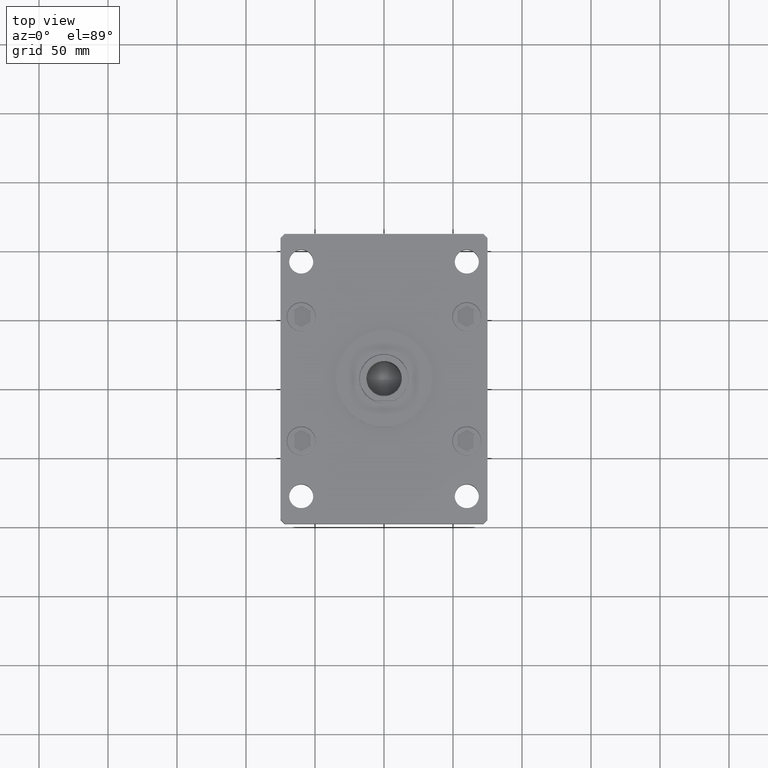
[diagram: clean part render]
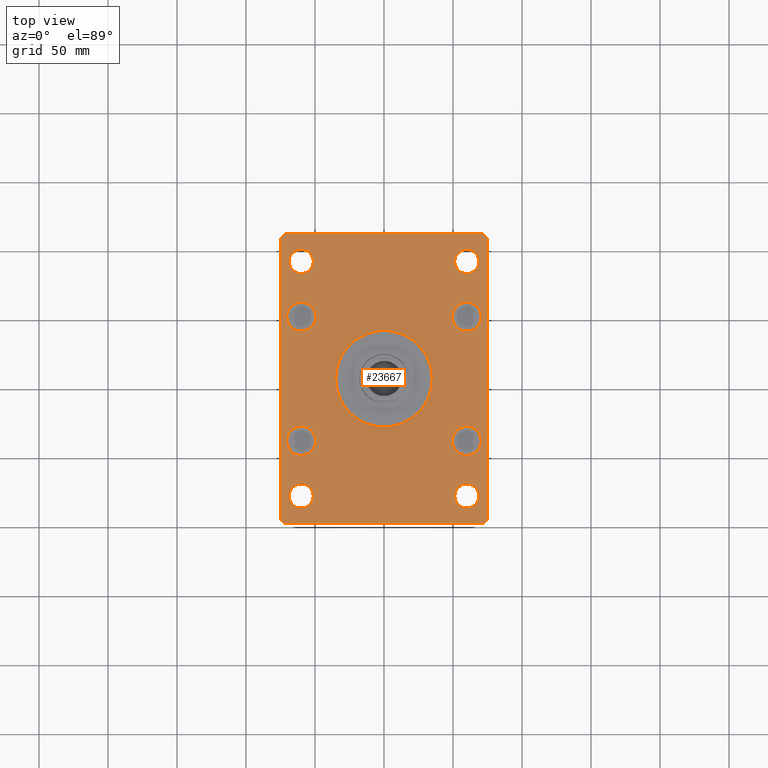
[diagram: same view with one face highlighted and labeled with its STEP entity id]
A machine part, top view. The second image highlights one B-rep face of the part: STEP entity #23667.
In plain terms, the highlighted planar face has unit normal (0, 0, 1).
Its self-contained STEP definition (entity closure, byte-faithful):
#260 = CARTESIAN_POINT ( 'NONE',  ( 75.00000000000001421, 102.0000000000000142, 27.00000000000000000 ) ) ;
#352 = ORIENTED_EDGE ( 'NONE', *, *, #47602, .F. ) ;
#439 = DIRECTION ( 'NONE',  ( 1.000000000000000000, 0.000000000000000000, 0.000000000000000000 ) ) ;
#751 = EDGE_CURVE ( 'NONE', #18945, #15163, #23187, .T. ) ;
#865 = DIRECTION ( 'NONE',  ( 1.000000000000000000, 0.000000000000000000, 0.000000000000000000 ) ) ;
#1011 = EDGE_CURVE ( 'NONE', #15163, #18945, #10245, .T. ) ;
#1012 = AXIS2_PLACEMENT_3D ( 'NONE', #3447, #19679, #14848 ) ;
#1070 = CIRCLE ( 'NONE', #48639, 10.50000000000000178 ) ;
#1314 = ORIENTED_EDGE ( 'NONE', *, *, #5724, .F. ) ;
#1429 = ORIENTED_EDGE ( 'NONE', *, *, #23904, .T. ) ;
#1515 = ORIENTED_EDGE ( 'NONE', *, *, #31446, .T. ) ;
#1531 = VERTEX_POINT ( 'NONE', #48296 ) ;
#2531 = DIRECTION ( 'NONE',  ( 0.000000000000000000, 0.000000000000000000, 1.000000000000000000 ) ) ;
#2704 = EDGE_CURVE ( 'NONE', #6020, #50595, #3052, .T. ) ;
#2845 = EDGE_LOOP ( 'NONE', ( #38983, #1314 ) ) ;
#2946 = DIRECTION ( 'NONE',  ( 1.000000000000000000, 0.000000000000000000, -0.000000000000000000 ) ) ;
#3052 = LINE ( 'NONE', #28751, #29283 ) ;
#3064 = EDGE_CURVE ( 'NONE', #10298, #18015, #10282, .T. ) ;
#3068 = ORIENTED_EDGE ( 'NONE', *, *, #18777, .T. ) ;
#3306 = DIRECTION ( 'NONE',  ( 0.000000000000000000, 0.000000000000000000, 1.000000000000000000 ) ) ;
#3447 = CARTESIAN_POINT ( 'NONE',  ( -60.00000000000000711, 84.99999999999997158, 27.00000000000000000 ) ) ;
#3692 = EDGE_LOOP ( 'NONE', ( #352, #37514 ) ) ;
#3762 = ORIENTED_EDGE ( 'NONE', *, *, #13640, .F. ) ;
#3950 = CARTESIAN_POINT ( 'NONE',  ( 51.24999999999995737, -85.00000000000001421, 27.00000000000000000 ) ) ;
#4043 = CIRCLE ( 'NONE', #28255, 35.00000000000000711 ) ;
#4055 = LINE ( 'NONE', #37066, #5712 ) ;
#4129 = CARTESIAN_POINT ( 'NONE',  ( -49.49999999999999289, 45.00000000000001421, 27.00000000000000000 ) ) ;
#4199 = DIRECTION ( 'NONE',  ( 0.7071067811865474617, -0.7071067811865474617, 0.000000000000000000 ) ) ;
#4204 = CARTESIAN_POINT ( 'NONE',  ( 60.00000000000000000, 45.00000000000000711, 27.00000000000000000 ) ) ;
#4260 = CARTESIAN_POINT ( 'NONE',  ( 59.99999999999997158, -85.00000000000001421, 27.00000000000000000 ) ) ;
#4379 = CARTESIAN_POINT ( 'NONE',  ( -60.00000000000000000, -45.00000000000000000, 27.00000000000000000 ) ) ;
#5245 = CARTESIAN_POINT ( 'NONE',  ( -71.99999999999998579, -105.0000000000000142, 27.00000000000000000 ) ) ;
#5476 = CARTESIAN_POINT ( 'NONE',  ( -59.99999999999997158, -85.00000000000001421, 27.00000000000000000 ) ) ;
#5642 = EDGE_CURVE ( 'NONE', #16416, #21475, #31824, .T. ) ;
#5712 = VECTOR ( 'NONE', #29505, 1000.000000000000114 ) ;
#5724 = EDGE_CURVE ( 'NONE', #18015, #10298, #8487, .T. ) ;
#5817 = ORIENTED_EDGE ( 'NONE', *, *, #33747, .F. ) ;
#5964 = DIRECTION ( 'NONE',  ( 1.000000000000000000, 0.000000000000000000, 0.000000000000000000 ) ) ;
#6020 = VERTEX_POINT ( 'NONE', #260 ) ;
#6182 = VECTOR ( 'NONE', #53256, 1000.000000000000000 ) ;
#6825 = CARTESIAN_POINT ( 'NONE',  ( -72.00000000000002842, 105.0000000000000000, 27.00000000000000000 ) ) ;
#6908 = LINE ( 'NONE', #27480, #27236 ) ;
#7007 = FACE_BOUND ( 'NONE', #19407, .T. ) ;
#7162 = CIRCLE ( 'NONE', #46958, 8.750000000000007105 ) ;
#8024 = EDGE_CURVE ( 'NONE', #32370, #20910, #26948, .T. ) ;
#8384 = CARTESIAN_POINT ( 'NONE',  ( 60.00000000000000000, 84.99999999999998579, 27.00000000000000000 ) ) ;
#8487 = CIRCLE ( 'NONE', #12831, 10.50000000000000178 ) ;
#8606 = CARTESIAN_POINT ( 'NONE',  ( 59.99999999999997158, -85.00000000000001421, 27.00000000000000000 ) ) ;
#8777 = CIRCLE ( 'NONE', #1012, 8.750000000000007105 ) ;
#8974 = ORIENTED_EDGE ( 'NONE', *, *, #18209, .F. ) ;
#9233 = DIRECTION ( 'NONE',  ( 0.000000000000000000, 0.000000000000000000, 1.000000000000000000 ) ) ;
#9311 = LINE ( 'NONE', #5245, #48467 ) ;
#9829 = ORIENTED_EDGE ( 'NONE', *, *, #49407, .T. ) ;
#10063 = DIRECTION ( 'NONE',  ( 1.000000000000000000, 0.000000000000000000, 0.000000000000000000 ) ) ;
#10145 = CARTESIAN_POINT ( 'NONE',  ( -71.99999999999998579, -105.0000000000000142, 27.00000000000000000 ) ) ;
#10218 = EDGE_LOOP ( 'NONE', ( #45666, #26671 ) ) ;
#10245 = CIRCLE ( 'NONE', #43099, 8.750000000000007105 ) ;
#10282 = CIRCLE ( 'NONE', #40523, 10.50000000000000178 ) ;
#10298 = VERTEX_POINT ( 'NONE', #37682 ) ;
#10814 = DIRECTION ( 'NONE',  ( 0.000000000000000000, 0.000000000000000000, 1.000000000000000000 ) ) ;
#11794 = VECTOR ( 'NONE', #4199, 1000.000000000000114 ) ;
#12492 = VERTEX_POINT ( 'NONE', #20042 ) ;
#12511 = EDGE_LOOP ( 'NONE', ( #50767, #14949 ) ) ;
#12653 = LINE ( 'NONE', #16159, #6182 ) ;
#12819 = VERTEX_POINT ( 'NONE', #3950 ) ;
#12831 = AXIS2_PLACEMENT_3D ( 'NONE', #52275, #40082, #10063 ) ;
#12894 = CARTESIAN_POINT ( 'NONE',  ( -75.00000000000001421, 102.0000000000000000, 27.00000000000000000 ) ) ;
#13073 = DIRECTION ( 'NONE',  ( 1.000000000000000000, 0.000000000000000000, 0.000000000000000000 ) ) ;
#13268 = CIRCLE ( 'NONE', #42681, 10.50000000000000178 ) ;
#13640 = EDGE_CURVE ( 'NONE', #52314, #19594, #20842, .T. ) ;
#14848 = DIRECTION ( 'NONE',  ( 1.000000000000000000, 0.000000000000000000, 0.000000000000000000 ) ) ;
#14878 = FACE_BOUND ( 'NONE', #10218, .T. ) ;
#14949 = ORIENTED_EDGE ( 'NONE', *, *, #35287, .F. ) ;
#14961 = AXIS2_PLACEMENT_3D ( 'NONE', #35634, #22924, #39440 ) ;
#15036 = DIRECTION ( 'NONE',  ( 1.360567432138672081E-16, -1.000000000000000000, 0.000000000000000000 ) ) ;
#15047 = VERTEX_POINT ( 'NONE', #32380 ) ;
#15163 = VERTEX_POINT ( 'NONE', #45670 ) ;
#15966 = CARTESIAN_POINT ( 'NONE',  ( 70.50000000000000000, -45.00000000000000711, 27.00000000000000000 ) ) ;
#16159 = CARTESIAN_POINT ( 'NONE',  ( 72.00000000000004263, 105.0000000000000284, 27.00000000000000000 ) ) ;
#16416 = VERTEX_POINT ( 'NONE', #31868 ) ;
#16467 = AXIS2_PLACEMENT_3D ( 'NONE', #47915, #10814, #2946 ) ;
#17209 = EDGE_CURVE ( 'NONE', #36291, #1531, #34810, .T. ) ;
#18015 = VERTEX_POINT ( 'NONE', #4129 ) ;
#18125 = ORIENTED_EDGE ( 'NONE', *, *, #8024, .T. ) ;
#18209 = EDGE_CURVE ( 'NONE', #21475, #16416, #7162, .T. ) ;
#18777 = EDGE_CURVE ( 'NONE', #36640, #32370, #52320, .T. ) ;
#18922 = FACE_OUTER_BOUND ( 'NONE', #36767, .T. ) ;
#18945 = VERTEX_POINT ( 'NONE', #36174 ) ;
#19262 = DIRECTION ( 'NONE',  ( 1.000000000000000000, 0.000000000000000000, 0.000000000000000000 ) ) ;
#19342 = CARTESIAN_POINT ( 'NONE',  ( 75.00000000000000000, -101.9999999999999005, 27.00000000000000000 ) ) ;
#19407 = EDGE_LOOP ( 'NONE', ( #40715, #36647 ) ) ;
#19594 = VERTEX_POINT ( 'NONE', #26740 ) ;
#19679 = DIRECTION ( 'NONE',  ( 0.000000000000000000, 0.000000000000000000, 1.000000000000000000 ) ) ;
#19966 = CARTESIAN_POINT ( 'NONE',  ( 70.50000000000000000, 45.00000000000000711, 27.00000000000000000 ) ) ;
#20042 = CARTESIAN_POINT ( 'NONE',  ( -51.25000000000000000, 84.99999999999997158, 27.00000000000000000 ) ) ;
#20131 = VERTEX_POINT ( 'NONE', #19342 ) ;
#20257 = CARTESIAN_POINT ( 'NONE',  ( 35.00000000000000711, 4.286263797015737285E-15, 27.00000000000000000 ) ) ;
#20485 = EDGE_CURVE ( 'NONE', #15047, #26209, #1070, .T. ) ;
#20842 = CIRCLE ( 'NONE', #33842, 10.49999999999999467 ) ;
#20910 = VERTEX_POINT ( 'NONE', #39938 ) ;
#21318 = DIRECTION ( 'NONE',  ( 1.000000000000000000, 0.000000000000000000, 0.000000000000000000 ) ) ;
#21475 = VERTEX_POINT ( 'NONE', #50677 ) ;
#21632 = CARTESIAN_POINT ( 'NONE',  ( 0.000000000000000000, 0.000000000000000000, 27.00000000000000000 ) ) ;
#22370 = CARTESIAN_POINT ( 'NONE',  ( -60.00000000000000000, 45.00000000000001421, 27.00000000000000000 ) ) ;
#22924 = DIRECTION ( 'NONE',  ( 0.000000000000000000, 0.000000000000000000, 1.000000000000000000 ) ) ;
#23013 = ORIENTED_EDGE ( 'NONE', *, *, #17209, .F. ) ;
#23187 = CIRCLE ( 'NONE', #45689, 8.750000000000007105 ) ;
#23197 = EDGE_CURVE ( 'NONE', #52649, #12819, #26820, .T. ) ;
#23425 = DIRECTION ( 'NONE',  ( 6.802837160693364103E-17, 1.000000000000000000, 0.000000000000000000 ) ) ;
#23588 = ORIENTED_EDGE ( 'NONE', *, *, #37805, .F. ) ;
#23667 = ADVANCED_FACE ( 'NONE', ( #26781, #47650, #35966, #31113, #39511, #18922, #14878, #7007, #35441, #51975 ), #31383, .T. ) ;
#23904 = EDGE_CURVE ( 'NONE', #37928, #53581, #9311, .T. ) ;
#24144 = DIRECTION ( 'NONE',  ( 1.000000000000000000, 0.000000000000000000, 0.000000000000000000 ) ) ;
#24563 = DIRECTION ( 'NONE',  ( 0.000000000000000000, 0.000000000000000000, 1.000000000000000000 ) ) ;
#24757 = EDGE_LOOP ( 'NONE', ( #23588, #36031 ) ) ;
#24766 = LINE ( 'NONE', #41287, #11794 ) ;
#25007 = DIRECTION ( 'NONE',  ( 0.000000000000000000, 0.000000000000000000, 1.000000000000000000 ) ) ;
#25350 = ORIENTED_EDGE ( 'NONE', *, *, #49991, .T. ) ;
#25402 = AXIS2_PLACEMENT_3D ( 'NONE', #4204, #33164, #53479 ) ;
#25824 = DIRECTION ( 'NONE',  ( 1.000000000000000000, 7.709882115452476194E-16, 0.000000000000000000 ) ) ;
#26209 = VERTEX_POINT ( 'NONE', #36998 ) ;
#26427 = AXIS2_PLACEMENT_3D ( 'NONE', #4260, #24563, #49206 ) ;
#26671 = ORIENTED_EDGE ( 'NONE', *, *, #751, .F. ) ;
#26740 = CARTESIAN_POINT ( 'NONE',  ( 49.50000000000000000, -45.00000000000000711, 27.00000000000000000 ) ) ;
#26781 = FACE_BOUND ( 'NONE', #45403, .T. ) ;
#26820 = CIRCLE ( 'NONE', #41558, 8.750000000000007105 ) ;
#26948 = LINE ( 'NONE', #43482, #38827 ) ;
#27236 = VECTOR ( 'NONE', #23425, 1000.000000000000000 ) ;
#27480 = CARTESIAN_POINT ( 'NONE',  ( 75.00000000000000000, -101.9999999999999005, 27.00000000000000000 ) ) ;
#27496 = AXIS2_PLACEMENT_3D ( 'NONE', #50685, #29837, #865 ) ;
#27918 = DIRECTION ( 'NONE',  ( 0.000000000000000000, 0.000000000000000000, 1.000000000000000000 ) ) ;
#28090 = CARTESIAN_POINT ( 'NONE',  ( 72.00000000000004263, 105.0000000000000284, 27.00000000000000000 ) ) ;
#28188 = DIRECTION ( 'NONE',  ( -0.7071067811865459074, -0.7071067811865491270, 0.000000000000000000 ) ) ;
#28210 = VERTEX_POINT ( 'NONE', #19966 ) ;
#28255 = AXIS2_PLACEMENT_3D ( 'NONE', #36857, #3306, #28740 ) ;
#28311 = DIRECTION ( 'NONE',  ( 0.000000000000000000, 0.000000000000000000, 1.000000000000000000 ) ) ;
#28518 = CARTESIAN_POINT ( 'NONE',  ( 60.00000000000000000, -45.00000000000000711, 27.00000000000000000 ) ) ;
#28740 = DIRECTION ( 'NONE',  ( 1.000000000000000000, 0.000000000000000000, 0.000000000000000000 ) ) ;
#28751 = CARTESIAN_POINT ( 'NONE',  ( 75.00000000000001421, 102.0000000000000142, 27.00000000000000000 ) ) ;
#28766 = AXIS2_PLACEMENT_3D ( 'NONE', #21632, #46296, #24144 ) ;
#29283 = VECTOR ( 'NONE', #36601, 1000.000000000000000 ) ;
#29505 = DIRECTION ( 'NONE',  ( 0.7071067811865459074, 0.7071067811865491270, 0.000000000000000000 ) ) ;
#29837 = DIRECTION ( 'NONE',  ( 0.000000000000000000, 0.000000000000000000, 1.000000000000000000 ) ) ;
#29844 = DIRECTION ( 'NONE',  ( 0.000000000000000000, 0.000000000000000000, 1.000000000000000000 ) ) ;
#30250 = DIRECTION ( 'NONE',  ( 0.000000000000000000, 0.000000000000000000, 1.000000000000000000 ) ) ;
#30612 = CIRCLE ( 'NONE', #25402, 10.49999999999999467 ) ;
#30863 = CARTESIAN_POINT ( 'NONE',  ( 60.00000000000000000, -45.00000000000000711, 27.00000000000000000 ) ) ;
#31113 = FACE_BOUND ( 'NONE', #12511, .T. ) ;
#31342 = AXIS2_PLACEMENT_3D ( 'NONE', #28518, #25007, #41529 ) ;
#31383 = PLANE ( 'NONE',  #16467 ) ;
#31418 = EDGE_CURVE ( 'NONE', #50547, #12492, #8777, .T. ) ;
#31446 = EDGE_CURVE ( 'NONE', #50595, #36640, #12653, .T. ) ;
#31824 = CIRCLE ( 'NONE', #27496, 8.750000000000007105 ) ;
#31868 = CARTESIAN_POINT ( 'NONE',  ( -68.74999999999997158, -85.00000000000001421, 27.00000000000000000 ) ) ;
#32108 = EDGE_LOOP ( 'NONE', ( #48127, #8974 ) ) ;
#32235 = CARTESIAN_POINT ( 'NONE',  ( -72.00000000000002842, 105.0000000000000000, 27.00000000000000000 ) ) ;
#32370 = VERTEX_POINT ( 'NONE', #12894 ) ;
#32380 = CARTESIAN_POINT ( 'NONE',  ( -49.49999999999999289, -45.00000000000000000, 27.00000000000000000 ) ) ;
#32907 = CARTESIAN_POINT ( 'NONE',  ( -60.00000000000000000, -45.00000000000000000, 27.00000000000000000 ) ) ;
#33164 = DIRECTION ( 'NONE',  ( 0.000000000000000000, 0.000000000000000000, 1.000000000000000000 ) ) ;
#33747 = EDGE_CURVE ( 'NONE', #19594, #52314, #44335, .T. ) ;
#33842 = AXIS2_PLACEMENT_3D ( 'NONE', #30863, #9233, #5964 ) ;
#34291 = DIRECTION ( 'NONE',  ( 0.000000000000000000, 0.000000000000000000, 1.000000000000000000 ) ) ;
#34810 = CIRCLE ( 'NONE', #28766, 35.00000000000000711 ) ;
#34893 = AXIS2_PLACEMENT_3D ( 'NONE', #43917, #53104, #19262 ) ;
#35287 = EDGE_CURVE ( 'NONE', #12492, #50547, #49549, .T. ) ;
#35441 = FACE_BOUND ( 'NONE', #24757, .T. ) ;
#35634 = CARTESIAN_POINT ( 'NONE',  ( -60.00000000000000711, 84.99999999999997158, 27.00000000000000000 ) ) ;
#35707 = CARTESIAN_POINT ( 'NONE',  ( 49.50000000000000000, 45.00000000000000711, 27.00000000000000000 ) ) ;
#35966 = FACE_BOUND ( 'NONE', #46936, .T. ) ;
#36031 = ORIENTED_EDGE ( 'NONE', *, *, #36687, .F. ) ;
#36174 = CARTESIAN_POINT ( 'NONE',  ( 68.75000000000000000, 84.99999999999998579, 27.00000000000000000 ) ) ;
#36291 = VERTEX_POINT ( 'NONE', #20257 ) ;
#36601 = DIRECTION ( 'NONE',  ( -0.7071067811865426878, 0.7071067811865524577, 0.000000000000000000 ) ) ;
#36640 = VERTEX_POINT ( 'NONE', #32235 ) ;
#36647 = ORIENTED_EDGE ( 'NONE', *, *, #20485, .F. ) ;
#36687 = EDGE_CURVE ( 'NONE', #28210, #38703, #48702, .T. ) ;
#36767 = EDGE_LOOP ( 'NONE', ( #1429, #9829, #44003, #48082, #1515, #3068, #18125, #25350 ) ) ;
#36857 = CARTESIAN_POINT ( 'NONE',  ( 0.000000000000000000, 0.000000000000000000, 27.00000000000000000 ) ) ;
#36998 = CARTESIAN_POINT ( 'NONE',  ( -70.50000000000000000, -45.00000000000000000, 27.00000000000000000 ) ) ;
#37066 = CARTESIAN_POINT ( 'NONE',  ( 72.00000000000001421, -104.9999999999999005, 27.00000000000000000 ) ) ;
#37407 = EDGE_CURVE ( 'NONE', #26209, #15047, #13268, .T. ) ;
#37514 = ORIENTED_EDGE ( 'NONE', *, *, #23197, .F. ) ;
#37682 = CARTESIAN_POINT ( 'NONE',  ( -70.50000000000000000, 45.00000000000001421, 27.00000000000000000 ) ) ;
#37805 = EDGE_CURVE ( 'NONE', #38703, #28210, #30612, .T. ) ;
#37928 = VERTEX_POINT ( 'NONE', #10145 ) ;
#38314 = VECTOR ( 'NONE', #28188, 1000.000000000000114 ) ;
#38703 = VERTEX_POINT ( 'NONE', #35707 ) ;
#38827 = VECTOR ( 'NONE', #15036, 1000.000000000000000 ) ;
#38983 = ORIENTED_EDGE ( 'NONE', *, *, #3064, .F. ) ;
#39440 = DIRECTION ( 'NONE',  ( 1.000000000000000000, 0.000000000000000000, 0.000000000000000000 ) ) ;
#39511 = FACE_BOUND ( 'NONE', #32108, .T. ) ;
#39889 = DIRECTION ( 'NONE',  ( 1.000000000000000000, 0.000000000000000000, 0.000000000000000000 ) ) ;
#39938 = CARTESIAN_POINT ( 'NONE',  ( -74.99999999999998579, -102.0000000000000142, 27.00000000000000000 ) ) ;
#40082 = DIRECTION ( 'NONE',  ( 0.000000000000000000, 0.000000000000000000, 1.000000000000000000 ) ) ;
#40288 = CARTESIAN_POINT ( 'NONE',  ( -68.75000000000000000, 84.99999999999997158, 27.00000000000000000 ) ) ;
#40523 = AXIS2_PLACEMENT_3D ( 'NONE', #22370, #34291, #47035 ) ;
#40715 = ORIENTED_EDGE ( 'NONE', *, *, #37407, .F. ) ;
#41101 = CARTESIAN_POINT ( 'NONE',  ( 72.00000000000001421, -104.9999999999999005, 27.00000000000000000 ) ) ;
#41115 = CIRCLE ( 'NONE', #26427, 8.750000000000007105 ) ;
#41287 = CARTESIAN_POINT ( 'NONE',  ( -74.99999999999998579, -102.0000000000000142, 27.00000000000000000 ) ) ;
#41529 = DIRECTION ( 'NONE',  ( 1.000000000000000000, 0.000000000000000000, 0.000000000000000000 ) ) ;
#41558 = AXIS2_PLACEMENT_3D ( 'NONE', #8606, #30250, #21318 ) ;
#42170 = CARTESIAN_POINT ( 'NONE',  ( 68.74999999999997158, -85.00000000000001421, 27.00000000000000000 ) ) ;
#42681 = AXIS2_PLACEMENT_3D ( 'NONE', #32907, #28311, #439 ) ;
#43099 = AXIS2_PLACEMENT_3D ( 'NONE', #48688, #45161, #53274 ) ;
#43482 = CARTESIAN_POINT ( 'NONE',  ( -75.00000000000001421, 102.0000000000000000, 27.00000000000000000 ) ) ;
#43917 = CARTESIAN_POINT ( 'NONE',  ( 60.00000000000000000, 45.00000000000000711, 27.00000000000000000 ) ) ;
#44003 = ORIENTED_EDGE ( 'NONE', *, *, #46803, .T. ) ;
#44335 = CIRCLE ( 'NONE', #31342, 10.49999999999999467 ) ;
#44716 = DIRECTION ( 'NONE',  ( 1.000000000000000000, 0.000000000000000000, 0.000000000000000000 ) ) ;
#45161 = DIRECTION ( 'NONE',  ( 0.000000000000000000, 0.000000000000000000, 1.000000000000000000 ) ) ;
#45403 = EDGE_LOOP ( 'NONE', ( #47942, #23013 ) ) ;
#45666 = ORIENTED_EDGE ( 'NONE', *, *, #1011, .F. ) ;
#45670 = CARTESIAN_POINT ( 'NONE',  ( 51.24999999999998579, 84.99999999999998579, 27.00000000000000000 ) ) ;
#45689 = AXIS2_PLACEMENT_3D ( 'NONE', #8384, #2531, #39889 ) ;
#46296 = DIRECTION ( 'NONE',  ( 0.000000000000000000, 0.000000000000000000, 1.000000000000000000 ) ) ;
#46803 = EDGE_CURVE ( 'NONE', #20131, #6020, #6908, .T. ) ;
#46936 = EDGE_LOOP ( 'NONE', ( #5817, #3762 ) ) ;
#46958 = AXIS2_PLACEMENT_3D ( 'NONE', #5476, #29844, #13073 ) ;
#47035 = DIRECTION ( 'NONE',  ( 1.000000000000000000, 0.000000000000000000, 0.000000000000000000 ) ) ;
#47602 = EDGE_CURVE ( 'NONE', #12819, #52649, #41115, .T. ) ;
#47650 = FACE_BOUND ( 'NONE', #2845, .T. ) ;
#47915 = CARTESIAN_POINT ( 'NONE',  ( 0.000000000000000000, 0.000000000000000000, 27.00000000000000000 ) ) ;
#47942 = ORIENTED_EDGE ( 'NONE', *, *, #51260, .F. ) ;
#48082 = ORIENTED_EDGE ( 'NONE', *, *, #2704, .T. ) ;
#48127 = ORIENTED_EDGE ( 'NONE', *, *, #5642, .F. ) ;
#48296 = CARTESIAN_POINT ( 'NONE',  ( -35.00000000000000711, 0.000000000000000000, 27.00000000000000000 ) ) ;
#48467 = VECTOR ( 'NONE', #25824, 1000.000000000000000 ) ;
#48639 = AXIS2_PLACEMENT_3D ( 'NONE', #4379, #27918, #44716 ) ;
#48688 = CARTESIAN_POINT ( 'NONE',  ( 60.00000000000000000, 84.99999999999998579, 27.00000000000000000 ) ) ;
#48702 = CIRCLE ( 'NONE', #34893, 10.49999999999999467 ) ;
#49206 = DIRECTION ( 'NONE',  ( 1.000000000000000000, 0.000000000000000000, 0.000000000000000000 ) ) ;
#49407 = EDGE_CURVE ( 'NONE', #53581, #20131, #4055, .T. ) ;
#49549 = CIRCLE ( 'NONE', #14961, 8.750000000000007105 ) ;
#49991 = EDGE_CURVE ( 'NONE', #20910, #37928, #24766, .T. ) ;
#50547 = VERTEX_POINT ( 'NONE', #40288 ) ;
#50595 = VERTEX_POINT ( 'NONE', #28090 ) ;
#50677 = CARTESIAN_POINT ( 'NONE',  ( -51.24999999999996447, -85.00000000000001421, 27.00000000000000000 ) ) ;
#50685 = CARTESIAN_POINT ( 'NONE',  ( -59.99999999999997158, -85.00000000000001421, 27.00000000000000000 ) ) ;
#50767 = ORIENTED_EDGE ( 'NONE', *, *, #31418, .F. ) ;
#51260 = EDGE_CURVE ( 'NONE', #1531, #36291, #4043, .T. ) ;
#51975 = FACE_BOUND ( 'NONE', #3692, .T. ) ;
#52275 = CARTESIAN_POINT ( 'NONE',  ( -60.00000000000000000, 45.00000000000001421, 27.00000000000000000 ) ) ;
#52314 = VERTEX_POINT ( 'NONE', #15966 ) ;
#52320 = LINE ( 'NONE', #6825, #38314 ) ;
#52649 = VERTEX_POINT ( 'NONE', #42170 ) ;
#53104 = DIRECTION ( 'NONE',  ( 0.000000000000000000, 0.000000000000000000, 1.000000000000000000 ) ) ;
#53256 = DIRECTION ( 'NONE',  ( -1.000000000000000000, -1.927470528863118062E-16, 0.000000000000000000 ) ) ;
#53274 = DIRECTION ( 'NONE',  ( 1.000000000000000000, 0.000000000000000000, 0.000000000000000000 ) ) ;
#53479 = DIRECTION ( 'NONE',  ( 1.000000000000000000, 0.000000000000000000, 0.000000000000000000 ) ) ;
#53581 = VERTEX_POINT ( 'NONE', #41101 ) ;